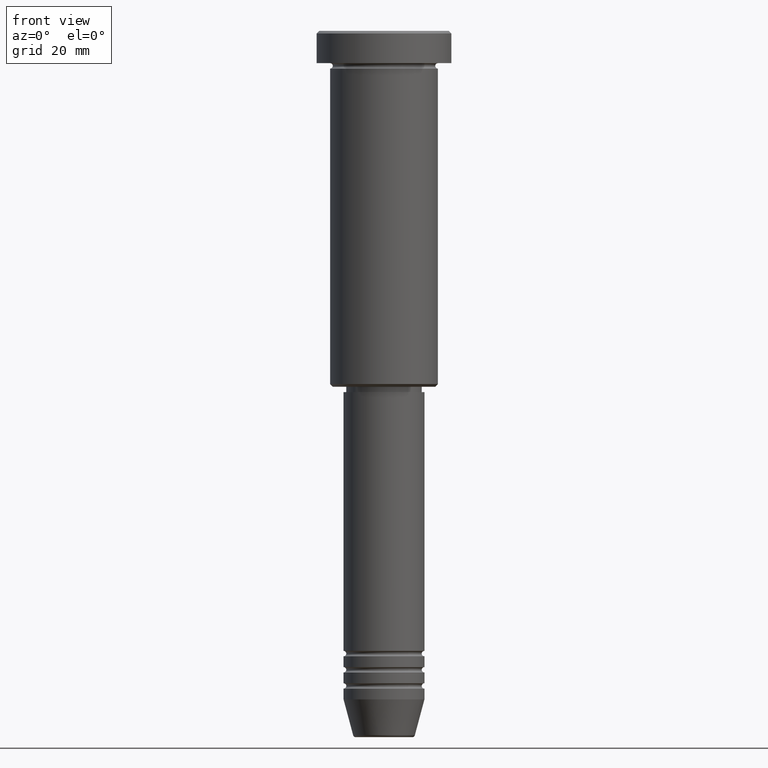
[diagram: clean part render]
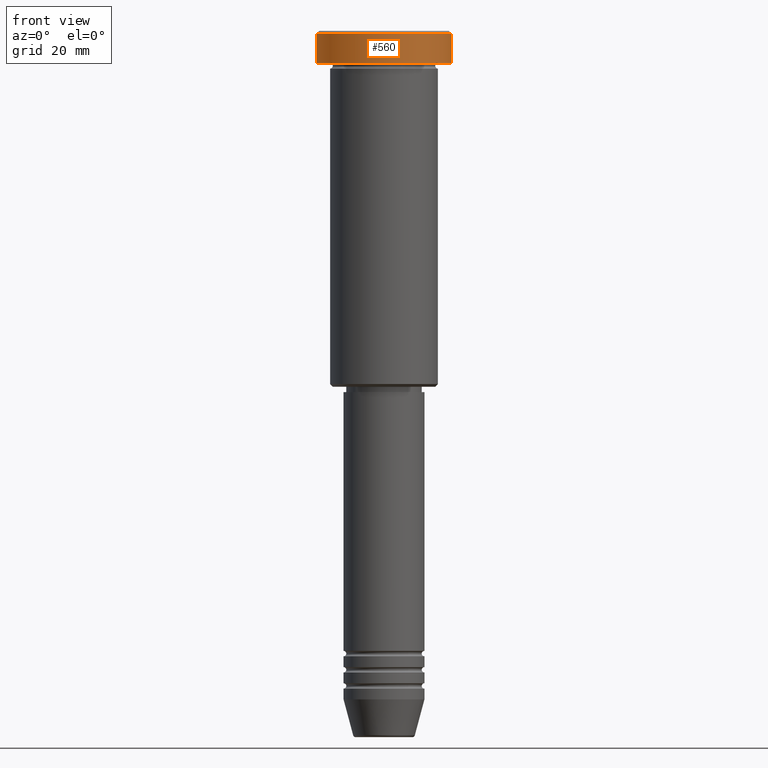
[diagram: same view with one face highlighted and labeled with its STEP entity id]
A machine part, front view. The second image highlights one B-rep face of the part: STEP entity #560.
In plain terms, the highlighted cylindrical surface (partial cylindrical patch) has radius 12.5 mm, axis along (-0, -0, 1).
Its self-contained STEP definition (entity closure, byte-faithful):
#36 = ORIENTED_EDGE ( 'NONE', *, *, #98, .T. ) ;
#44 = ORIENTED_EDGE ( 'NONE', *, *, #912, .T. ) ;
#72 = VERTEX_POINT ( 'NONE', #911 ) ;
#79 = LINE ( 'NONE', #1127, #430 ) ;
#98 = EDGE_CURVE ( 'NONE', #1051, #72, #272, .T. ) ;
#114 = EDGE_CURVE ( 'NONE', #72, #306, #79, .T. ) ;
#121 = EDGE_CURVE ( 'NONE', #1051, #579, #674, .T. ) ;
#137 = DIRECTION ( 'NONE',  ( -0.000000000000000000, -0.000000000000000000, 1.000000000000000000 ) ) ;
#186 = CARTESIAN_POINT ( 'NONE',  ( -12.50000000000000000, 1.530808498934191521E-15, -0.4999999999999917843 ) ) ;
#188 = CIRCLE ( 'NONE', #993, 12.50000000000000000 ) ;
#241 = ORIENTED_EDGE ( 'NONE', *, *, #121, .F. ) ;
#272 = CIRCLE ( 'NONE', #945, 12.50000000000000000 ) ;
#276 = CARTESIAN_POINT ( 'NONE',  ( 0.000000000000000000, 0.000000000000000000, 0.000000000000000000 ) ) ;
#306 = VERTEX_POINT ( 'NONE', #744 ) ;
#320 = DIRECTION ( 'NONE',  ( 0.000000000000000000, 0.000000000000000000, -1.000000000000000000 ) ) ;
#334 = DIRECTION ( 'NONE',  ( 1.000000000000000000, 0.000000000000000000, 0.000000000000000000 ) ) ;
#349 = DIRECTION ( 'NONE',  ( -0.000000000000000000, -0.000000000000000000, 1.000000000000000000 ) ) ;
#430 = VECTOR ( 'NONE', #137, 1000.000000000000000 ) ;
#454 = DIRECTION ( 'NONE',  ( 1.000000000000000000, 0.000000000000000000, 0.000000000000000000 ) ) ;
#469 = AXIS2_PLACEMENT_3D ( 'NONE', #276, #913, #454 ) ;
#551 = CARTESIAN_POINT ( 'NONE',  ( -12.50000000000000000, 1.530808498934191521E-15, -5.999999999999996447 ) ) ;
#560 = ADVANCED_FACE ( 'NONE', ( #998 ), #917, .T. ) ;
#579 = VERTEX_POINT ( 'NONE', #186 ) ;
#674 = LINE ( 'NONE', #1040, #1103 ) ;
#687 = CARTESIAN_POINT ( 'NONE',  ( 0.000000000000000000, 0.000000000000000000, -0.4999999999999917843 ) ) ;
#717 = ORIENTED_EDGE ( 'NONE', *, *, #114, .T. ) ;
#744 = CARTESIAN_POINT ( 'NONE',  ( 12.50000000000000000, 0.000000000000000000, -0.4999999999999917843 ) ) ;
#911 = CARTESIAN_POINT ( 'NONE',  ( 12.50000000000000000, 0.000000000000000000, -5.999999999999996447 ) ) ;
#912 = EDGE_CURVE ( 'NONE', #306, #579, #188, .T. ) ;
#913 = DIRECTION ( 'NONE',  ( -0.000000000000000000, -0.000000000000000000, 1.000000000000000000 ) ) ;
#917 = CYLINDRICAL_SURFACE ( 'NONE', #469, 12.50000000000000000 ) ;
#945 = AXIS2_PLACEMENT_3D ( 'NONE', #1001, #349, #1075 ) ;
#948 = EDGE_LOOP ( 'NONE', ( #241, #36, #717, #44 ) ) ;
#993 = AXIS2_PLACEMENT_3D ( 'NONE', #687, #320, #334 ) ;
#998 = FACE_OUTER_BOUND ( 'NONE', #948, .T. ) ;
#1001 = CARTESIAN_POINT ( 'NONE',  ( 0.000000000000000000, 0.000000000000000000, -5.999999999999996447 ) ) ;
#1040 = CARTESIAN_POINT ( 'NONE',  ( -12.50000000000000000, 1.530808498934191521E-15, 0.000000000000000000 ) ) ;
#1051 = VERTEX_POINT ( 'NONE', #551 ) ;
#1075 = DIRECTION ( 'NONE',  ( 1.000000000000000000, 0.000000000000000000, 0.000000000000000000 ) ) ;
#1103 = VECTOR ( 'NONE', #1118, 1000.000000000000000 ) ;
#1118 = DIRECTION ( 'NONE',  ( -0.000000000000000000, -0.000000000000000000, 1.000000000000000000 ) ) ;
#1127 = CARTESIAN_POINT ( 'NONE',  ( 12.50000000000000000, 0.000000000000000000, 0.000000000000000000 ) ) ;